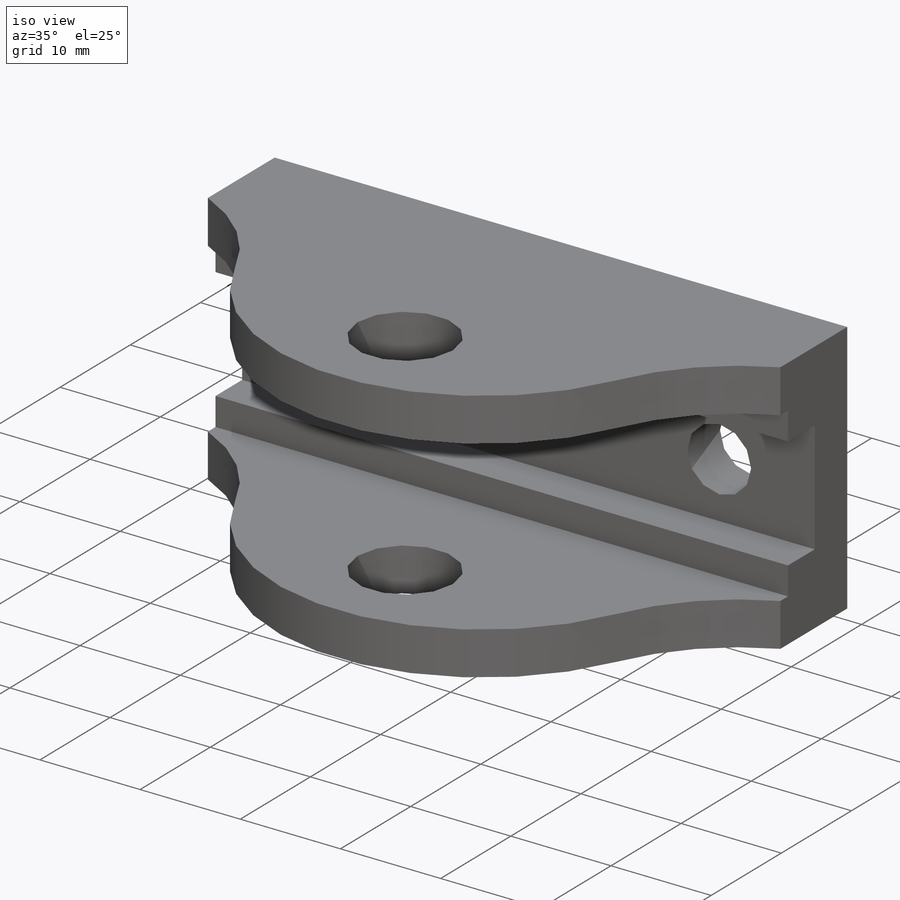
[diagram: iso view]
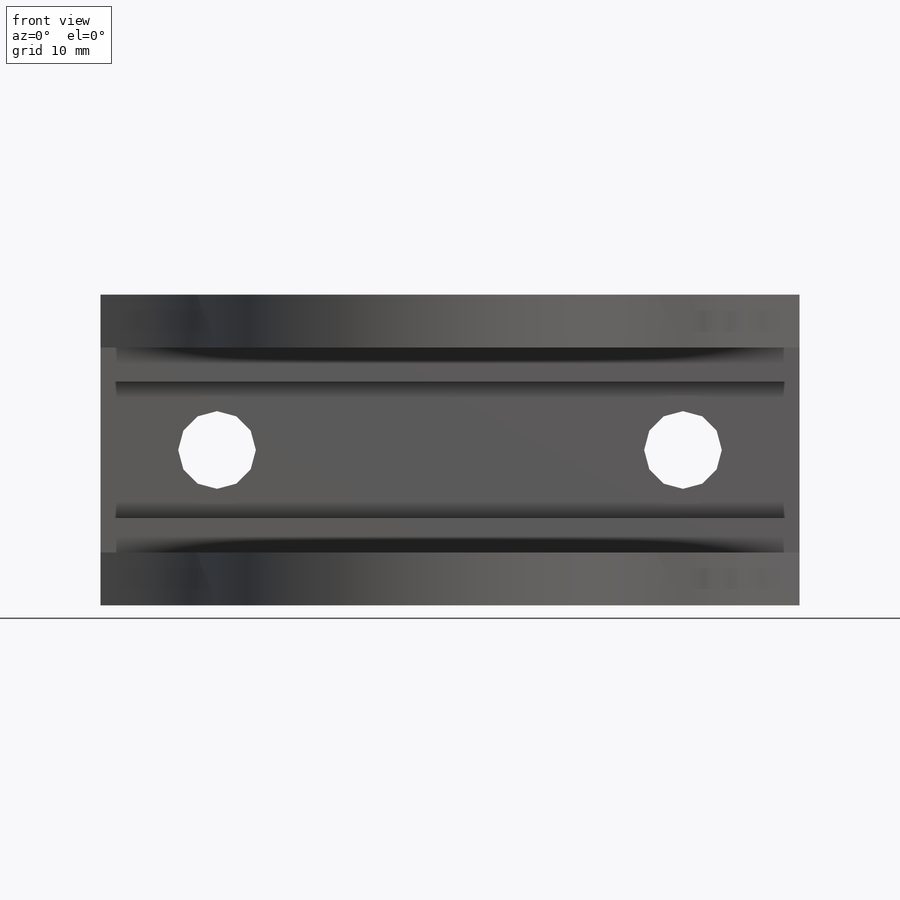
[diagram: front view]
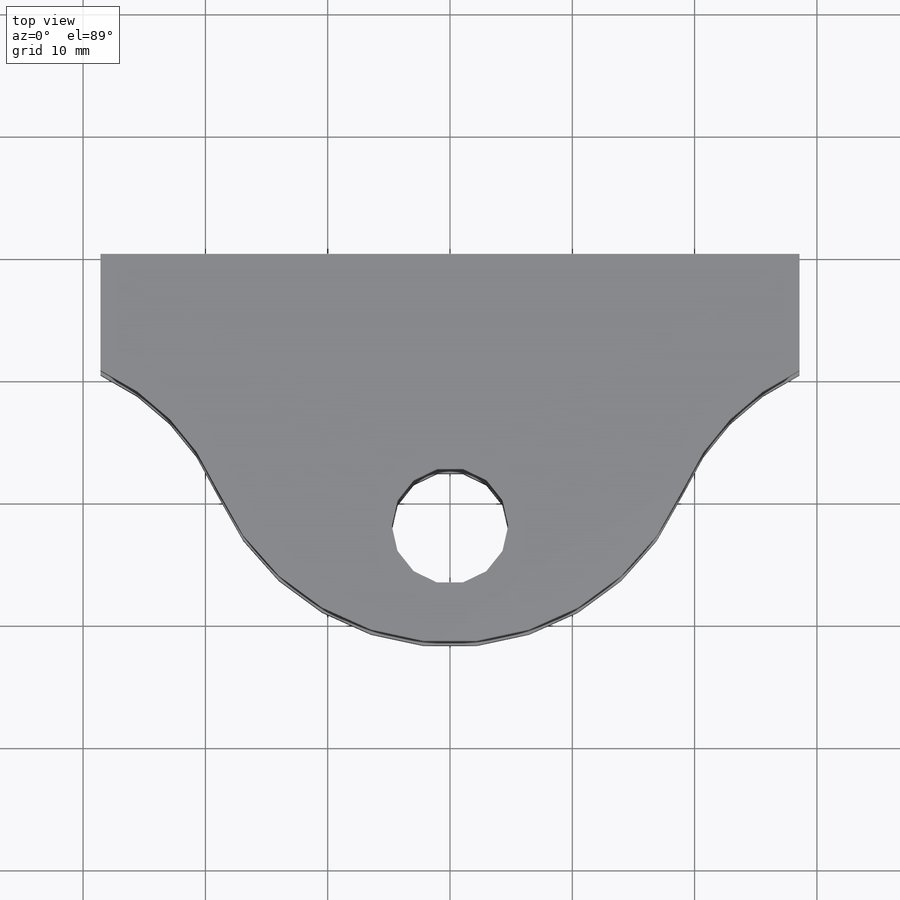
[diagram: top view]
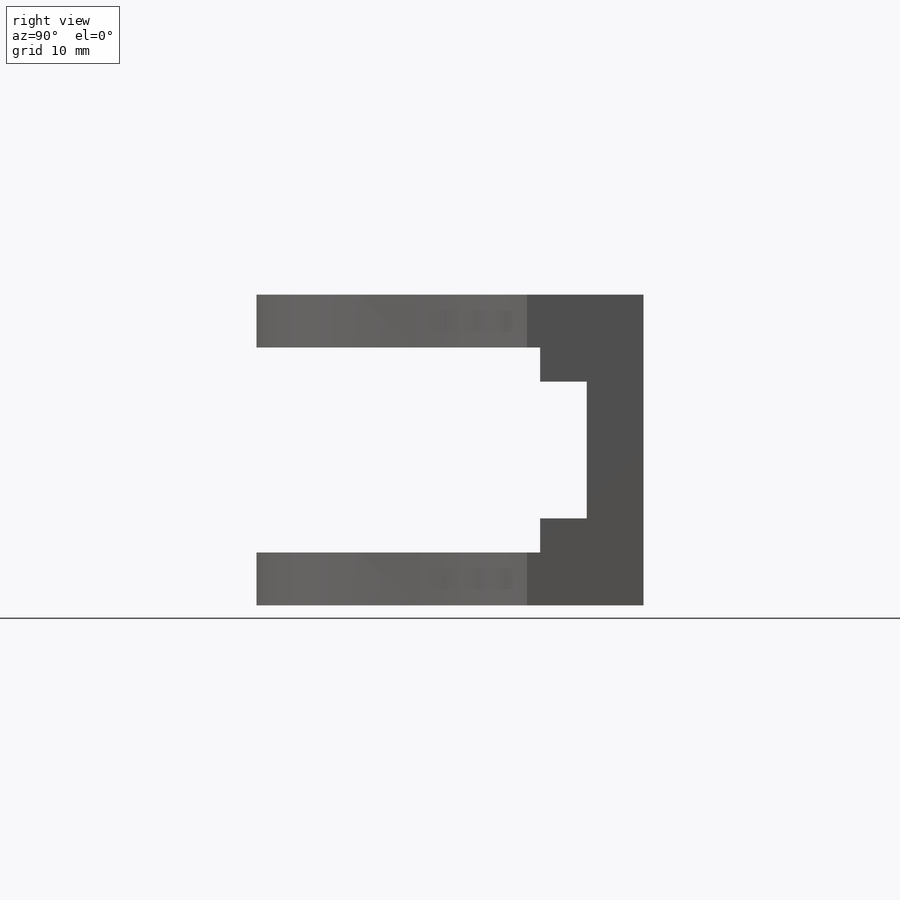
[diagram: right view]
SOLIDWORKS PART (.sldprt)
format: sldprt  version: not decoded by parser v0  size: 266,240 bytes
history: native  units: mm
features: sketch x6, cut_extrude x4, material x1, extrude x1 (+11 scaffold rows collapsed)
feature tree (23):
  scaffold x11  (default folders/planes/origin — collapsed)
  material  "6061-T6 (SS)"
  sketch  "Sketch2"  dims[D4=6.35mm D1=25.4mm D2=44.45mm D3=38.1mm D5=57.15mm]
  extrude  "Extrude1"  Depth=38.1mm
  sketch  "Sketch3"  dims[D1=11.176mm]
  cut_extrude  "Extrude2"  Depth=4.6355mm
  sketch  "Sketch4"  dims[D2=4.7625mm D1=4.7625mm]
  cut_extrude  "Extrude3"  Depth=3.81mm
  sketch  "Sketch5"  dims[D1=9.525mm D2=22.225mm]
  cut_extrude  "Extrude4"  [1 undecoded]
  sketch  "Sketch6"  dims[c1.D2=~76.668837mm c1.D1=19.05mm c2.D2=50.8mm c2.D1=25.4mm c3.D2=9.525mm c3.D3=9.525mm c3.D4=38.1mm c3.D1=7.9375mm]
  cut_extrude  "Extrude5"  [1 undecoded]
  sketch  "3DSketch2"
decode coverage: 8 of 11 modeling features carry decoded parameters
note: ~ marks probable driven/reference dimensions
note: 2 parameter values undecoded
note: suppression state not decoded; provenance and decode notes live in map.json
